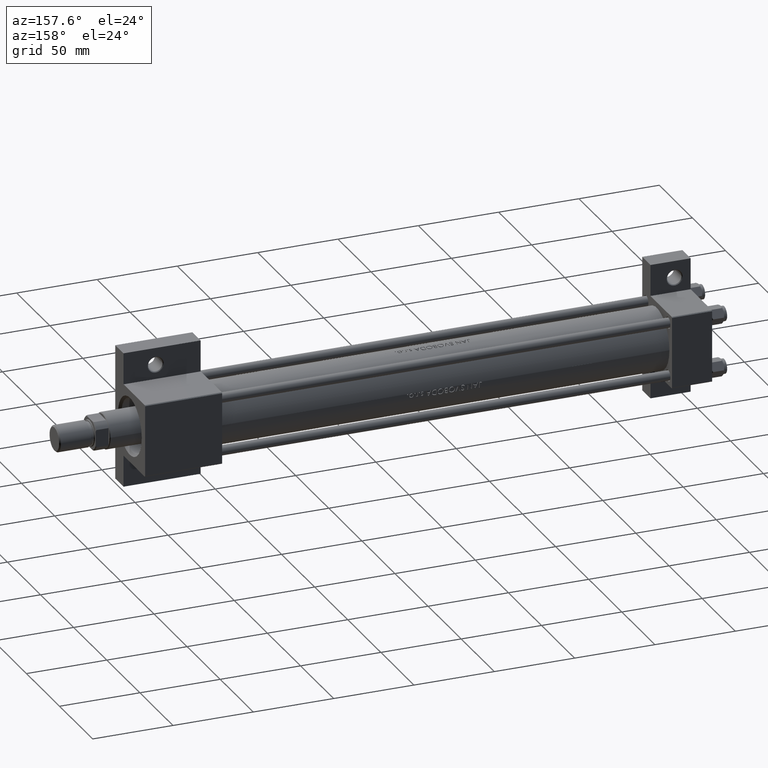
[diagram: clean part render]
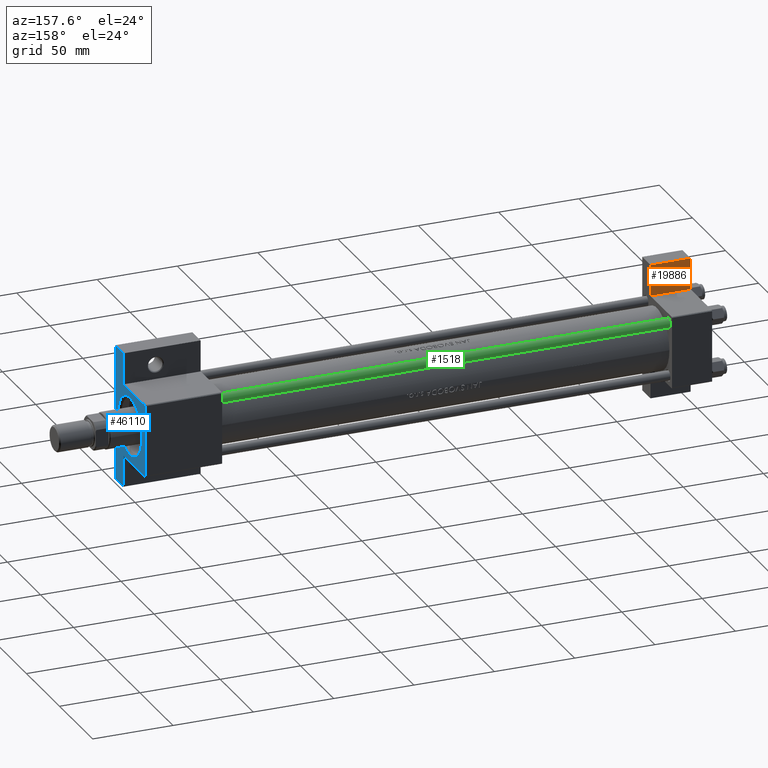
[diagram: same view with three faces highlighted in distinct colors, each labeled with its STEP entity id]
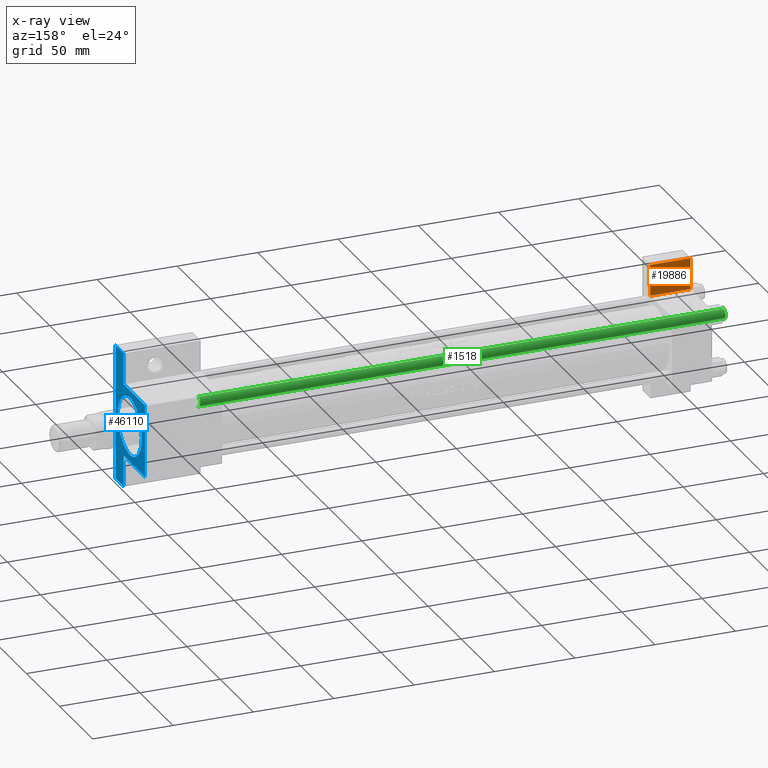
[diagram: x-ray of the same camera — body ghosted, the three highlighted faces saturated]
A machine part, auxiliary view with three faces highlighted in distinct colors.
The next image is the same camera in x-ray (body ghosted, the three faces saturated) — at least one of them is partly hidden behind the body in this view.
Their STEP definitions:

[orange] entity #19886 — the highlighted planar face has unit normal (0, -1, 0).
#816 = VECTOR ( 'NONE', #33596, 1000.000000000000000 ) ;
#1160 = CARTESIAN_POINT ( 'NONE',  ( -3.595989349422702816E-17, -41.99999999999999289, -9.999999999999994671 ) ) ;
#1851 = EDGE_CURVE ( 'NONE', #3403, #42533, #45449, .T. ) ;
#2255 = EDGE_LOOP ( 'NONE', ( #26522, #26945 ) ) ;
#2489 = CARTESIAN_POINT ( 'NONE',  ( -3.595989349422856274E-17, -41.99999999999999289, -9.999999999999994671 ) ) ;
#2550 = LINE ( 'NONE', #17378, #17596 ) ;
#3403 = VERTEX_POINT ( 'NONE', #8448 ) ;
#3963 = CARTESIAN_POINT ( 'NONE',  ( -3.595989349422703432E-17, -41.99999999999998579, -9.999999999999994671 ) ) ;
#5002 = DIRECTION ( 'NONE',  ( 0.000000000000000000, 0.000000000000000000, -1.000000000000000000 ) ) ;
#5175 = AXIS2_PLACEMENT_3D ( 'NONE', #34387, #5002, #19571 ) ;
#8077 = CARTESIAN_POINT ( 'NONE',  ( 25.00000000000000000, -41.99999999999999289, -9.999999999999994671 ) ) ;
#8448 = CARTESIAN_POINT ( 'NONE',  ( 25.00000000000000000, -42.00000000000000000, -9.999999999999994671 ) ) ;
#10461 = DIRECTION ( 'NONE',  ( 0.000000000000000000, 0.000000000000000000, -1.000000000000000000 ) ) ;
#12669 = ORIENTED_EDGE ( 'NONE', *, *, #1851, .T. ) ;
#13607 = CARTESIAN_POINT ( 'NONE',  ( 0.000000000000000000, 0.000000000000000000, -9.999999999999998224 ) ) ;
#14085 = FACE_OUTER_BOUND ( 'NONE', #16706, .T. ) ;
#14903 = VECTOR ( 'NONE', #34048, 1000.000000000000000 ) ;
#15024 = CARTESIAN_POINT ( 'NONE',  ( 25.00000000000000000, -22.50000000000000000, -9.999999999999980460 ) ) ;
#16706 = EDGE_LOOP ( 'NONE', ( #12669, #19187, #26243, #28253 ) ) ;
#17378 = CARTESIAN_POINT ( 'NONE',  ( -6.404881882659816330E-17, -22.50000000000000355, -9.999999999999998224 ) ) ;
#17596 = VECTOR ( 'NONE', #36322, 1000.000000000000000 ) ;
#18326 = DIRECTION ( 'NONE',  ( -1.000000000000000000, 0.000000000000000000, 0.000000000000000000 ) ) ;
#18568 = DIRECTION ( 'NONE',  ( 0.000000000000000000, 0.000000000000000000, -1.000000000000000000 ) ) ;
#19187 = ORIENTED_EDGE ( 'NONE', *, *, #27168, .T. ) ;
#19571 = DIRECTION ( 'NONE',  ( -1.000000000000000000, 0.000000000000000000, 0.000000000000000000 ) ) ;
#19886 = ADVANCED_FACE ( 'NONE', ( #36192, #14085 ), #20885, .F. ) ;
#20043 = CIRCLE ( 'NONE', #44864, 4.999500000000045574 ) ;
#20885 = PLANE ( 'NONE',  #41718 ) ;
#23548 = CARTESIAN_POINT ( 'NONE',  ( -6.404881882659739909E-17, -22.49999999999999645, -9.999999999999994671 ) ) ;
#24563 = CARTESIAN_POINT ( 'NONE',  ( 14.99950000000004735, -31.50000000000004263, -9.999999999999998224 ) ) ;
#24599 = LINE ( 'NONE', #2489, #42581 ) ;
#26243 = ORIENTED_EDGE ( 'NONE', *, *, #39534, .T. ) ;
#26522 = ORIENTED_EDGE ( 'NONE', *, *, #26972, .T. ) ;
#26945 = ORIENTED_EDGE ( 'NONE', *, *, #30642, .T. ) ;
#26972 = EDGE_CURVE ( 'NONE', #41182, #32890, #43183, .T. ) ;
#27168 = EDGE_CURVE ( 'NONE', #42533, #39860, #2550, .T. ) ;
#28253 = ORIENTED_EDGE ( 'NONE', *, *, #35250, .T. ) ;
#30642 = EDGE_CURVE ( 'NONE', #32890, #41182, #20043, .T. ) ;
#31059 = CARTESIAN_POINT ( 'NONE',  ( 5.000499999999954426, -31.50000000000004263, -9.999999999999998224 ) ) ;
#32890 = VERTEX_POINT ( 'NONE', #31059 ) ;
#33596 = DIRECTION ( 'NONE',  ( 1.440457709352326947E-18, -1.000000000000000000, 0.000000000000000000 ) ) ;
#34048 = DIRECTION ( 'NONE',  ( -0.000000000000000000, 1.000000000000000000, 0.000000000000000000 ) ) ;
#34387 = CARTESIAN_POINT ( 'NONE',  ( 10.00000000000000000, -31.50000000000004263, -9.999999999999998224 ) ) ;
#35250 = EDGE_CURVE ( 'NONE', #44429, #3403, #24599, .T. ) ;
#35533 = DIRECTION ( 'NONE',  ( 1.000000000000000000, -2.775557561562891844E-16, 0.000000000000000000 ) ) ;
#35707 = DIRECTION ( 'NONE',  ( -1.000000000000000000, 0.000000000000000000, -0.000000000000000000 ) ) ;
#36192 = FACE_BOUND ( 'NONE', #2255, .T. ) ;
#36322 = DIRECTION ( 'NONE',  ( -1.000000000000000000, 1.387778780781445922E-16, 0.000000000000000000 ) ) ;
#39534 = EDGE_CURVE ( 'NONE', #39860, #44429, #44057, .T. ) ;
#39860 = VERTEX_POINT ( 'NONE', #23548 ) ;
#40430 = CARTESIAN_POINT ( 'NONE',  ( 10.00000000000000000, -31.50000000000004263, -9.999999999999998224 ) ) ;
#41182 = VERTEX_POINT ( 'NONE', #24563 ) ;
#41718 = AXIS2_PLACEMENT_3D ( 'NONE', #13607, #10461, #35707 ) ;
#42533 = VERTEX_POINT ( 'NONE', #15024 ) ;
#42581 = VECTOR ( 'NONE', #35533, 1000.000000000000000 ) ;
#43183 = CIRCLE ( 'NONE', #5175, 4.999500000000045574 ) ;
#44057 = LINE ( 'NONE', #3963, #816 ) ;
#44429 = VERTEX_POINT ( 'NONE', #1160 ) ;
#44864 = AXIS2_PLACEMENT_3D ( 'NONE', #40430, #18568, #18326 ) ;
#45449 = LINE ( 'NONE', #8077, #14903 ) ;

[blue] entity #46110 — the highlighted planar face has unit normal (-1, 0, -0).
#115 = VERTEX_POINT ( 'NONE', #39567 ) ;
#906 = EDGE_CURVE ( 'NONE', #20545, #24934, #39690, .T. ) ;
#1753 = DIRECTION ( 'NONE',  ( 0.000000000000000000, -1.000000000000000000, 0.000000000000000000 ) ) ;
#1924 = CARTESIAN_POINT ( 'NONE',  ( 353.0000000000000568, -21.99999999999992539, 22.49999999999999289 ) ) ;
#2826 = DIRECTION ( 'NONE',  ( -1.000000000000000000, 0.000000000000000000, -0.000000000000000000 ) ) ;
#3344 = EDGE_CURVE ( 'NONE', #26870, #39957, #12810, .T. ) ;
#3506 = ORIENTED_EDGE ( 'NONE', *, *, #28657, .F. ) ;
#3709 = CARTESIAN_POINT ( 'NONE',  ( 353.0000000000000568, 0.000000000000000000, -0.4999999999999967804 ) ) ;
#3889 = EDGE_CURVE ( 'NONE', #39957, #115, #25000, .T. ) ;
#3981 = LINE ( 'NONE', #33617, #32578 ) ;
#5249 = VECTOR ( 'NONE', #47864, 1000.000000000000000 ) ;
#5371 = ORIENTED_EDGE ( 'NONE', *, *, #45395, .T. ) ;
#5443 = ORIENTED_EDGE ( 'NONE', *, *, #3344, .T. ) ;
#5741 = VERTEX_POINT ( 'NONE', #22855 ) ;
#5917 = ORIENTED_EDGE ( 'NONE', *, *, #46199, .T. ) ;
#6457 = VECTOR ( 'NONE', #40773, 1000.000000000000114 ) ;
#7092 = AXIS2_PLACEMENT_3D ( 'NONE', #10616, #2826, #17642 ) ;
#7177 = EDGE_LOOP ( 'NONE', ( #38253, #45269 ) ) ;
#7721 = LINE ( 'NONE', #30294, #47032 ) ;
#8789 = VECTOR ( 'NONE', #9226, 1000.000000000000114 ) ;
#9226 = DIRECTION ( 'NONE',  ( 0.000000000000000000, -0.7071067811865474617, 0.7071067811865474617 ) ) ;
#9721 = DIRECTION ( 'NONE',  ( -0.000000000000000000, 0.000000000000000000, 1.000000000000000000 ) ) ;
#10616 = CARTESIAN_POINT ( 'NONE',  ( 353.0000000000000568, 0.000000000000000000, -0.4999999999999967804 ) ) ;
#11810 = CARTESIAN_POINT ( 'NONE',  ( 353.0000000000000568, 0.000000000000000000, -18.50000000000006750 ) ) ;
#12622 = PLANE ( 'NONE',  #28158 ) ;
#12810 = LINE ( 'NONE', #27615, #21172 ) ;
#12940 = EDGE_CURVE ( 'NONE', #47524, #45885, #46071, .T. ) ;
#13185 = CARTESIAN_POINT ( 'NONE',  ( 353.0000000000000568, 41.99999999999996447, -9.999999999999998224 ) ) ;
#13349 = FACE_OUTER_BOUND ( 'NONE', #46086, .T. ) ;
#13712 = CARTESIAN_POINT ( 'NONE',  ( 353.0000000000000568, -42.00000000000003553, -22.50000000000000000 ) ) ;
#13833 = CARTESIAN_POINT ( 'NONE',  ( 353.0000000000000568, -22.49999999999999645, 22.49999999999999289 ) ) ;
#14563 = CARTESIAN_POINT ( 'NONE',  ( 353.0000000000000568, -22.49999999999999645, 21.99999999999993605 ) ) ;
#14791 = DIRECTION ( 'NONE',  ( 0.000000000000000000, 0.000000000000000000, -1.000000000000000000 ) ) ;
#17135 = ORIENTED_EDGE ( 'NONE', *, *, #12940, .T. ) ;
#17222 = CARTESIAN_POINT ( 'NONE',  ( 353.0000000000000568, 21.99999999999994671, 22.50000000000000355 ) ) ;
#17642 = DIRECTION ( 'NONE',  ( 0.000000000000000000, 0.000000000000000000, 1.000000000000000000 ) ) ;
#17950 = LINE ( 'NONE', #13833, #31248 ) ;
#18501 = LINE ( 'NONE', #36492, #28094 ) ;
#18590 = ORIENTED_EDGE ( 'NONE', *, *, #3889, .T. ) ;
#18755 = AXIS2_PLACEMENT_3D ( 'NONE', #3709, #33344, #29695 ) ;
#18800 = DIRECTION ( 'NONE',  ( 0.000000000000000000, 0.000000000000000000, -1.000000000000000000 ) ) ;
#20527 = ORIENTED_EDGE ( 'NONE', *, *, #35013, .F. ) ;
#20545 = VERTEX_POINT ( 'NONE', #11810 ) ;
#21172 = VECTOR ( 'NONE', #24208, 1000.000000000000000 ) ;
#22855 = CARTESIAN_POINT ( 'NONE',  ( 353.0000000000000568, -22.49999999999999645, -9.999999999999980460 ) ) ;
#23559 = CARTESIAN_POINT ( 'NONE',  ( 353.0000000000000568, -42.00000000000003553, -9.999999999999998224 ) ) ;
#24208 = DIRECTION ( 'NONE',  ( 0.000000000000000000, -1.000000000000000000, -2.312964634635742957E-16 ) ) ;
#24934 = VERTEX_POINT ( 'NONE', #32805 ) ;
#25000 = LINE ( 'NONE', #14563, #6457 ) ;
#25273 = CARTESIAN_POINT ( 'NONE',  ( 353.0000000000000568, 22.50000000000000355, 22.50000000000000355 ) ) ;
#26102 = EDGE_CURVE ( 'NONE', #5741, #47524, #7721, .T. ) ;
#26449 = CARTESIAN_POINT ( 'NONE',  ( 353.0000000000000568, 22.49999999999993605, -9.999999999999998224 ) ) ;
#26870 = VERTEX_POINT ( 'NONE', #32729 ) ;
#27127 = DIRECTION ( 'NONE',  ( 0.000000000000000000, 0.000000000000000000, -1.000000000000000000 ) ) ;
#27232 = CARTESIAN_POINT ( 'NONE',  ( 353.0000000000000568, 22.50000000000000355, 21.99999999999994671 ) ) ;
#27615 = CARTESIAN_POINT ( 'NONE',  ( 353.0000000000000568, 22.50000000000000355, 22.50000000000000355 ) ) ;
#28094 = VECTOR ( 'NONE', #36729, 1000.000000000000000 ) ;
#28158 = AXIS2_PLACEMENT_3D ( 'NONE', #35446, #42974, #9721 ) ;
#28657 = EDGE_CURVE ( 'NONE', #37269, #36671, #43739, .T. ) ;
#29120 = VECTOR ( 'NONE', #27127, 1000.000000000000000 ) ;
#29695 = DIRECTION ( 'NONE',  ( 0.000000000000000000, 0.000000000000000000, 1.000000000000000000 ) ) ;
#30294 = CARTESIAN_POINT ( 'NONE',  ( 353.0000000000000568, -42.00000000000003553, -9.999999999999998224 ) ) ;
#30539 = CARTESIAN_POINT ( 'NONE',  ( 353.0000000000000568, -42.00000000000003553, -9.999999999999998224 ) ) ;
#30684 = VERTEX_POINT ( 'NONE', #39952 ) ;
#31121 = ORIENTED_EDGE ( 'NONE', *, *, #44091, .F. ) ;
#31248 = VECTOR ( 'NONE', #14791, 1000.000000000000000 ) ;
#32578 = VECTOR ( 'NONE', #18800, 1000.000000000000000 ) ;
#32729 = CARTESIAN_POINT ( 'NONE',  ( 353.0000000000000568, 21.99999999999994671, 22.50000000000000355 ) ) ;
#32805 = CARTESIAN_POINT ( 'NONE',  ( 353.0000000000000568, 2.204364238465244894E-15, 17.50000000000007461 ) ) ;
#33209 = ORIENTED_EDGE ( 'NONE', *, *, #47205, .T. ) ;
#33344 = DIRECTION ( 'NONE',  ( -1.000000000000000000, 0.000000000000000000, -0.000000000000000000 ) ) ;
#33617 = CARTESIAN_POINT ( 'NONE',  ( 353.0000000000000568, 41.99999999999996447, -9.999999999999998224 ) ) ;
#33897 = ORIENTED_EDGE ( 'NONE', *, *, #26102, .T. ) ;
#35013 = EDGE_CURVE ( 'NONE', #36125, #30684, #3981, .T. ) ;
#35027 = LINE ( 'NONE', #13185, #47578 ) ;
#35446 = CARTESIAN_POINT ( 'NONE',  ( 353.0000000000000568, 0.000000000000000000, 0.000000000000000000 ) ) ;
#36125 = VERTEX_POINT ( 'NONE', #46223 ) ;
#36492 = CARTESIAN_POINT ( 'NONE',  ( 353.0000000000000568, 22.50000000000000355, -22.49999999999999645 ) ) ;
#36671 = VERTEX_POINT ( 'NONE', #26449 ) ;
#36729 = DIRECTION ( 'NONE',  ( 0.000000000000000000, -1.000000000000000000, -7.709882115452476934E-17 ) ) ;
#37269 = VERTEX_POINT ( 'NONE', #27232 ) ;
#38253 = ORIENTED_EDGE ( 'NONE', *, *, #906, .T. ) ;
#39091 = FACE_BOUND ( 'NONE', #7177, .T. ) ;
#39567 = CARTESIAN_POINT ( 'NONE',  ( 353.0000000000000568, -22.49999999999999645, 21.99999999999993605 ) ) ;
#39690 = CIRCLE ( 'NONE', #18755, 18.00000000000007105 ) ;
#39952 = CARTESIAN_POINT ( 'NONE',  ( 353.0000000000000568, 41.99999999999996447, -22.50000000000000000 ) ) ;
#39957 = VERTEX_POINT ( 'NONE', #1924 ) ;
#40773 = DIRECTION ( 'NONE',  ( -0.000000000000000000, -0.7071067811865474617, -0.7071067811865474617 ) ) ;
#41540 = EDGE_CURVE ( 'NONE', #24934, #20545, #45062, .T. ) ;
#41705 = DIRECTION ( 'NONE',  ( -0.000000000000000000, -1.000000000000000000, -0.000000000000000000 ) ) ;
#42974 = DIRECTION ( 'NONE',  ( -1.000000000000000000, 0.000000000000000000, -0.000000000000000000 ) ) ;
#43739 = LINE ( 'NONE', #25273, #5249 ) ;
#44091 = EDGE_CURVE ( 'NONE', #30684, #45885, #18501, .T. ) ;
#45062 = CIRCLE ( 'NONE', #7092, 18.00000000000007105 ) ;
#45269 = ORIENTED_EDGE ( 'NONE', *, *, #41540, .T. ) ;
#45395 = EDGE_CURVE ( 'NONE', #37269, #26870, #45879, .T. ) ;
#45879 = LINE ( 'NONE', #17222, #8789 ) ;
#45885 = VERTEX_POINT ( 'NONE', #13712 ) ;
#46071 = LINE ( 'NONE', #30539, #29120 ) ;
#46086 = EDGE_LOOP ( 'NONE', ( #3506, #5371, #5443, #18590, #5917, #33897, #17135, #31121, #20527, #33209 ) ) ;
#46110 = ADVANCED_FACE ( 'NONE', ( #39091, #13349 ), #12622, .F. ) ;
#46199 = EDGE_CURVE ( 'NONE', #115, #5741, #17950, .T. ) ;
#46223 = CARTESIAN_POINT ( 'NONE',  ( 353.0000000000000568, 41.99999999999996447, -9.999999999999998224 ) ) ;
#47032 = VECTOR ( 'NONE', #41705, 1000.000000000000000 ) ;
#47205 = EDGE_CURVE ( 'NONE', #36125, #36671, #35027, .T. ) ;
#47524 = VERTEX_POINT ( 'NONE', #23559 ) ;
#47578 = VECTOR ( 'NONE', #1753, 1000.000000000000000 ) ;
#47864 = DIRECTION ( 'NONE',  ( 0.000000000000000000, 0.000000000000000000, -1.000000000000000000 ) ) ;

[green] entity #1518 — the highlighted cylindrical surface (edge-blend (fillet) strip) has radius 3 mm, axis along (-1, -0, -0).
#762 = DIRECTION ( 'NONE',  ( 1.000000000000000000, 0.000000000000000000, 0.000000000000000000 ) ) ;
#904 = EDGE_CURVE ( 'NONE', #33443, #20782, #33482, .T. ) ;
#1518 = ADVANCED_FACE ( 'NONE', ( #13994 ), #3772, .T. ) ;
#2131 = CARTESIAN_POINT ( 'NONE',  ( -3.000000000000000444, 0.000000000000000000, 328.0000000000000000 ) ) ;
#2611 = LINE ( 'NONE', #2131, #13061 ) ;
#3772 = CYLINDRICAL_SURFACE ( 'NONE', #45916, 3.000000000000000444 ) ;
#4326 = CARTESIAN_POINT ( 'NONE',  ( 3.000000000000000444, 3.673940397442060361E-16, 328.0000000000000000 ) ) ;
#8411 = CIRCLE ( 'NONE', #45517, 3.000000000000000444 ) ;
#9964 = CARTESIAN_POINT ( 'NONE',  ( 3.000000000000000444, 3.673940397442060361E-16, 0.5000000000000559552 ) ) ;
#11070 = DIRECTION ( 'NONE',  ( -0.000000000000000000, -0.000000000000000000, -1.000000000000000000 ) ) ;
#12541 = AXIS2_PLACEMENT_3D ( 'NONE', #22164, #36992, #762 ) ;
#13061 = VECTOR ( 'NONE', #13793, 1000.000000000000000 ) ;
#13793 = DIRECTION ( 'NONE',  ( -0.000000000000000000, -0.000000000000000000, -1.000000000000000000 ) ) ;
#13994 = FACE_OUTER_BOUND ( 'NONE', #32786, .T. ) ;
#15261 = DIRECTION ( 'NONE',  ( -0.000000000000000000, -0.000000000000000000, -1.000000000000000000 ) ) ;
#17356 = VERTEX_POINT ( 'NONE', #9964 ) ;
#19862 = ORIENTED_EDGE ( 'NONE', *, *, #904, .T. ) ;
#20184 = EDGE_CURVE ( 'NONE', #33443, #37943, #2611, .T. ) ;
#20426 = EDGE_CURVE ( 'NONE', #17356, #37943, #8411, .T. ) ;
#20782 = VERTEX_POINT ( 'NONE', #29668 ) ;
#21126 = EDGE_CURVE ( 'NONE', #20782, #17356, #37610, .T. ) ;
#22164 = CARTESIAN_POINT ( 'NONE',  ( 0.000000000000000000, 0.000000000000000000, 327.5000000000000000 ) ) ;
#23636 = CARTESIAN_POINT ( 'NONE',  ( -3.000000000000000444, 0.000000000000000000, 327.5000000000000000 ) ) ;
#25869 = DIRECTION ( 'NONE',  ( -1.000000000000000000, 0.000000000000000000, 0.000000000000000000 ) ) ;
#26373 = DIRECTION ( 'NONE',  ( 1.000000000000000000, 0.000000000000000000, 0.000000000000000000 ) ) ;
#28429 = ORIENTED_EDGE ( 'NONE', *, *, #20184, .F. ) ;
#29567 = DIRECTION ( 'NONE',  ( -0.000000000000000000, -0.000000000000000000, 1.000000000000000000 ) ) ;
#29668 = CARTESIAN_POINT ( 'NONE',  ( 3.000000000000000444, 3.673940397442060361E-16, 327.5000000000000000 ) ) ;
#29836 = ORIENTED_EDGE ( 'NONE', *, *, #20426, .T. ) ;
#32779 = ORIENTED_EDGE ( 'NONE', *, *, #21126, .T. ) ;
#32786 = EDGE_LOOP ( 'NONE', ( #19862, #32779, #29836, #28429 ) ) ;
#33443 = VERTEX_POINT ( 'NONE', #23636 ) ;
#33482 = CIRCLE ( 'NONE', #12541, 3.000000000000000444 ) ;
#33756 = CARTESIAN_POINT ( 'NONE',  ( -3.000000000000000444, 0.000000000000000000, 0.5000000000000559552 ) ) ;
#36992 = DIRECTION ( 'NONE',  ( 0.000000000000000000, 0.000000000000000000, -1.000000000000000000 ) ) ;
#37610 = LINE ( 'NONE', #4326, #45559 ) ;
#37943 = VERTEX_POINT ( 'NONE', #33756 ) ;
#40959 = CARTESIAN_POINT ( 'NONE',  ( 0.000000000000000000, 0.000000000000000000, 0.5000000000000559552 ) ) ;
#44096 = CARTESIAN_POINT ( 'NONE',  ( 0.000000000000000000, 0.000000000000000000, 328.0000000000000000 ) ) ;
#45517 = AXIS2_PLACEMENT_3D ( 'NONE', #40959, #29567, #26373 ) ;
#45559 = VECTOR ( 'NONE', #15261, 1000.000000000000000 ) ;
#45916 = AXIS2_PLACEMENT_3D ( 'NONE', #44096, #11070, #25869 ) ;